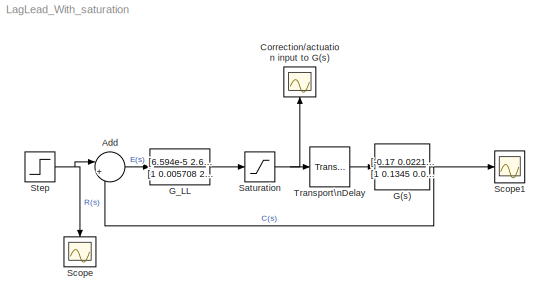
MODEL LagLead_With_saturation
KIND model
BLOCK [Sum] Add
  Inputs = |+-
  Ports = [2, 1]
  SID = 4
BLOCK [Scope] Correction//actuation input to G(s)
  Floating = off
  NumInputPorts = 1
  Ports = [1]
  SID = 18
  ScopeSpecificationString = Simulink.scopes.TimeScopeBlockCfg('CurrentConfiguration', extmgr.ConfigurationSet(extmgr.Configuration('Core','General UI',true),extmgr.Configuration('Core','Source UI',true),extmgr.Configuration('Sources','WiredSimulink',true,'DataLoggingVariableName','ScopeData2'),extmgr.Configuration('Visuals','Time Domain',true,'SerializedDisplays',{struct('MinYLimReal','-0.000002','MaxYLimReal','0.000023','YL...<+1764ch>
BLOCK [TransferFcn] G(s)
  Denominator = [1 0.1345 0.003587 1.376e-5 6e-9]
  Numerator = [-0.17 0.0221 0.00068]
  SID = 22
BLOCK [TransferFcn] G_LL
  Denominator = [1 0.005708 2.683e-7]
  Numerator = [6.594e-5 2.65e-7 1.16e-10]
  SID = 16
BLOCK [Saturate] Saturation
  LowerLimit = 0
  SID = 19
  UpperLimit = 2e-5
BLOCK [Scope] Scope
  Floating = off
  NumInputPorts = 1
  Ports = [1]
  SID = 5
  ScopeSpecificationString = Simulink.scopes.TimeScopeBlockCfg('CurrentConfiguration', extmgr.ConfigurationSet(extmgr.Configuration('Core','General UI',true),extmgr.Configuration('Core','Source UI',true),extmgr.Configuration('Sources','WiredSimulink',true),extmgr.Configuration('Visuals','Time Domain',true,'SerializedDisplays',{struct('MinYLimReal','-0.125','MaxYLimReal','1.125','YLabelReal','','MinYLimMag','0.00000','MaxYLimM...<+1312ch>
BLOCK [Scope] Scope1
  Floating = off
  NumInputPorts = 1
  Ports = [1]
  SID = 6
  ScopeSpecificationString = Simulink.scopes.TimeScopeBlockCfg('CurrentConfiguration', extmgr.ConfigurationSet(extmgr.Configuration('Core','General UI',true),extmgr.Configuration('Core','Source UI',true),extmgr.Configuration('Sources','WiredSimulink',true,'DataLoggingVariableName','ScopeData1'),extmgr.Configuration('Visuals','Time Domain',true,'SerializedDisplays',{struct('MinYLimReal','-0.13598','MaxYLimReal','1.22327','YLab...<+1736ch>
BLOCK [Step] Step
  SID = 3
  SampleTime = 0
BLOCK [TransportDelay] Transport\nDelay
  DelayTime = 8.5
  Ports = [1, 1]
  SID = 23
LINE Add:1 -> G_LL:1
NET G(s):1 -> Add:2, Scope1:1
LINE G_LL:1 -> Saturation:1
NET Saturation:1 -> Correction//actuation input to G(s):1, Transport\nDelay:1
NET Step:1 -> Add:1, Scope:1
LINE Transport\nDelay:1 -> G(s):1
note: NET lines group one-source signal fan-out (src -> all destinations, sorted); 1:1 wires keep LINE
